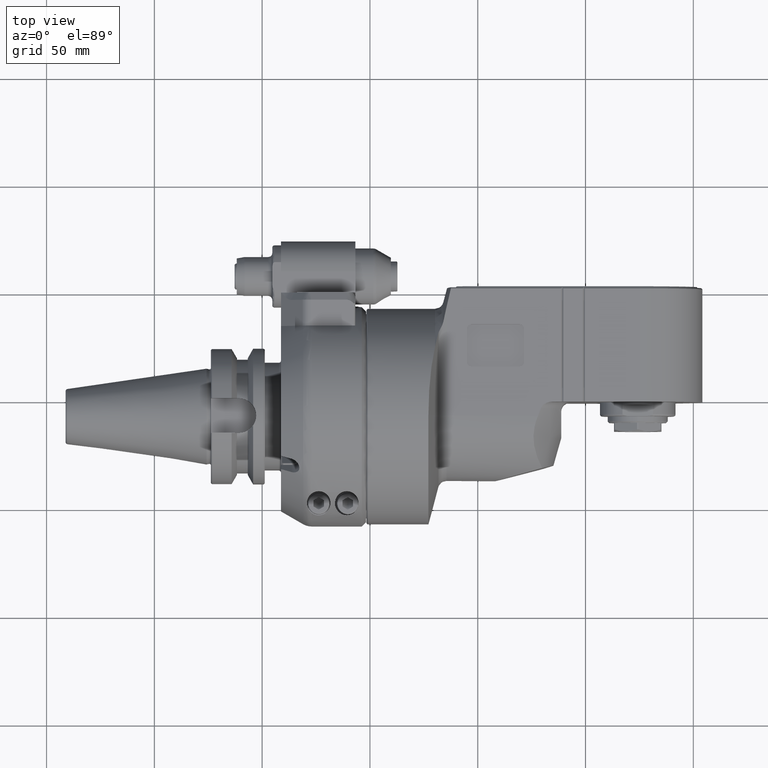
[diagram: clean part render]
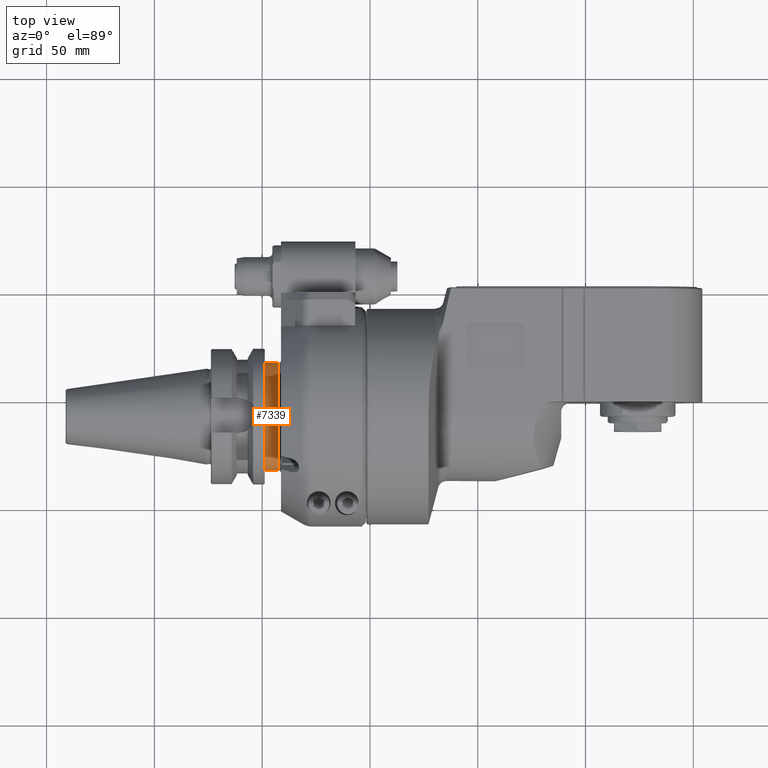
[diagram: same view with one face highlighted and labeled with its STEP entity id]
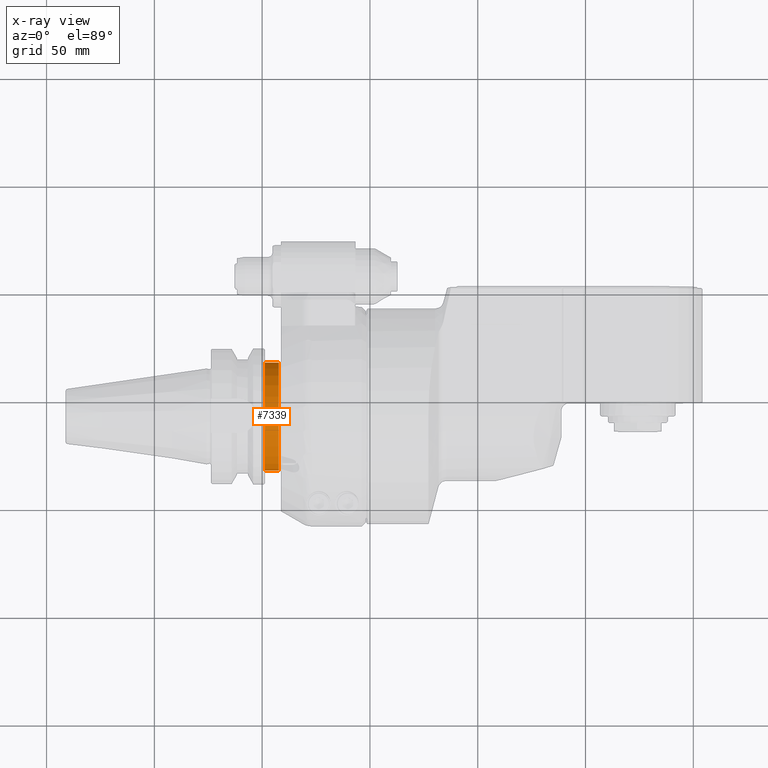
[diagram: x-ray of the same camera — body ghosted, the highlighted face saturated]
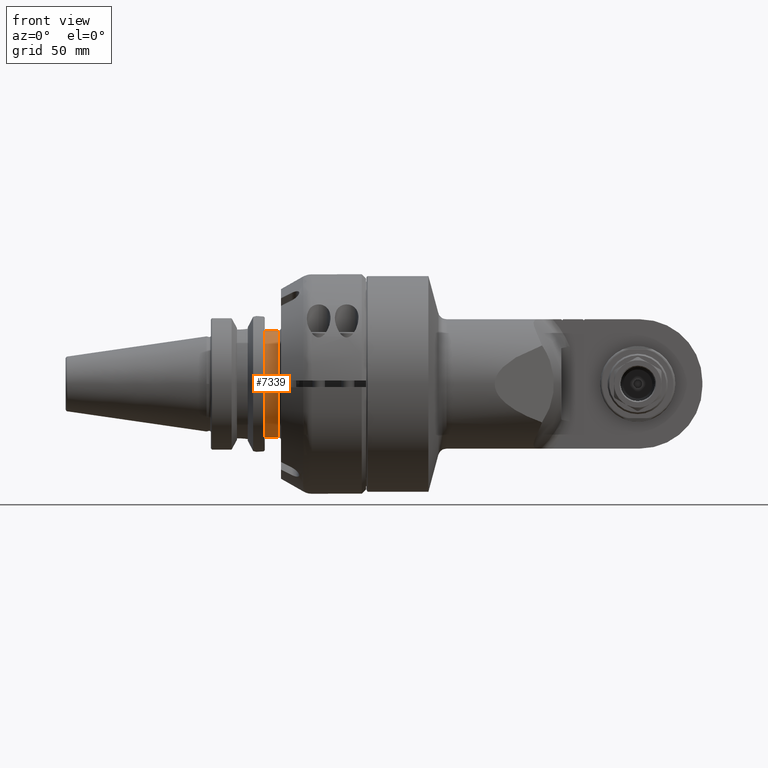
[diagram: same view with one face highlighted and labeled with its STEP entity id]
A machine part, top view. The second image highlights one B-rep face of the part: STEP entity #7339.
The next image is the same camera in x-ray: the body ghosted, the highlighted face saturated — about 0% of this face is hidden behind the body in this view.
A second angle (front view) of the same face is appended — the face is thin or edge-on in the first view.
In plain terms, the highlighted cylindrical surface (bore or boss wall) has radius 25 mm, axis along (1, 0, 0).
Its self-contained STEP definition (entity closure, byte-faithful):
#1016=FACE_OUTER_BOUND('',#1503,.T.);
#1503=EDGE_LOOP('',(#6466,#6467,#6468,#6469));
#2012=LINE('',#43192,#2512);
#2512=VECTOR('',#9934,25.);
#2878=CIRCLE('',#8108,25.);
#2879=CIRCLE('',#8110,25.);
#3511=VERTEX_POINT('',#43187);
#3512=VERTEX_POINT('',#43190);
#4521=EDGE_CURVE('',#3511,#3511,#2878,.T.);
#4522=EDGE_CURVE('',#3512,#3512,#2879,.T.);
#4523=EDGE_CURVE('',#3512,#3511,#2012,.T.);
#6466=ORIENTED_EDGE('',*,*,#4522,.F.);
#6467=ORIENTED_EDGE('',*,*,#4523,.T.);
#6468=ORIENTED_EDGE('',*,*,#4521,.F.);
#6469=ORIENTED_EDGE('',*,*,#4523,.F.);
#6972=CYLINDRICAL_SURFACE('',#8109,25.);
#7339=ADVANCED_FACE('',(#1016),#6972,.T.);
#8108=AXIS2_PLACEMENT_3D('',#43188,#9928,#9929);
#8109=AXIS2_PLACEMENT_3D('',#43189,#9930,#9931);
#8110=AXIS2_PLACEMENT_3D('',#43191,#9932,#9933);
#9928=DIRECTION('center_axis',(-1.,0.,0.));
#9929=DIRECTION('ref_axis',(0.,-1.,0.));
#9930=DIRECTION('center_axis',(1.,0.,0.));
#9931=DIRECTION('ref_axis',(0.,-1.,0.));
#9932=DIRECTION('center_axis',(1.,0.,0.));
#9933=DIRECTION('ref_axis',(0.,-1.400901059409E-9,-1.));
#9934=DIRECTION('',(-1.,0.,0.));
#43187=CARTESIAN_POINT('',(-59.,25.,0.));
#43188=CARTESIAN_POINT('Origin',(-59.,0.,0.));
#43189=CARTESIAN_POINT('Origin',(-58.25,0.,0.));
#43190=CARTESIAN_POINT('',(-52.5,25.,3.06161699786838E-15));
#43191=CARTESIAN_POINT('Origin',(-52.5,0.,0.));
#43192=CARTESIAN_POINT('',(-58.25,25.,3.06161699786838E-15));